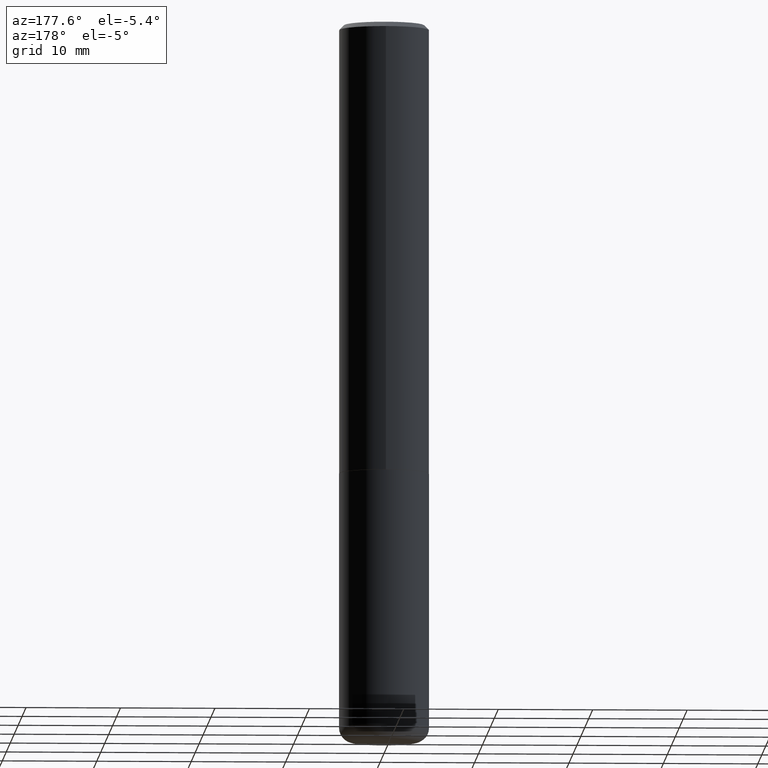
[diagram: clean part render]
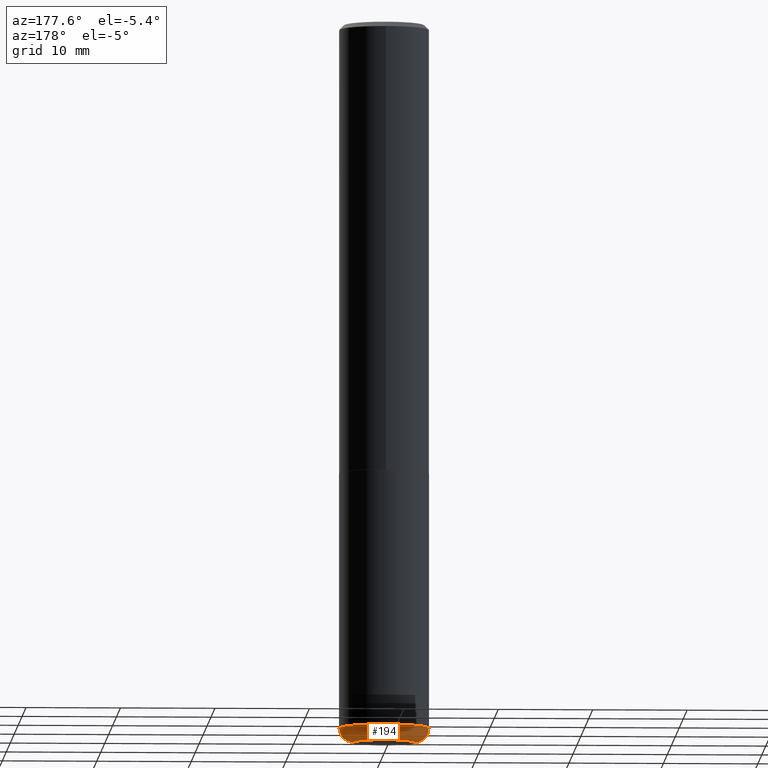
[diagram: same view with one face highlighted and labeled with its STEP entity id]
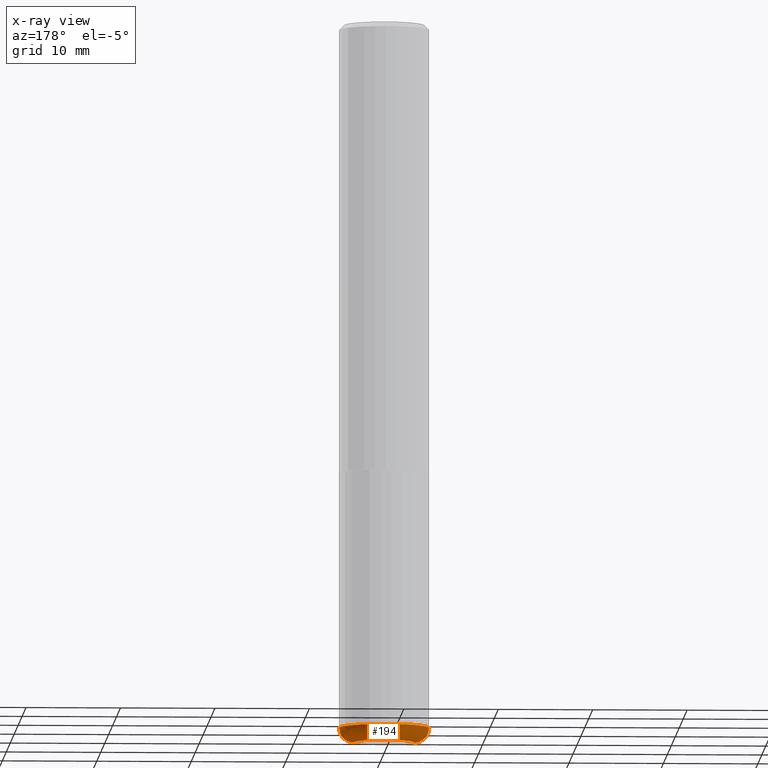
[diagram: x-ray of the same camera — body ghosted, the highlighted face saturated]
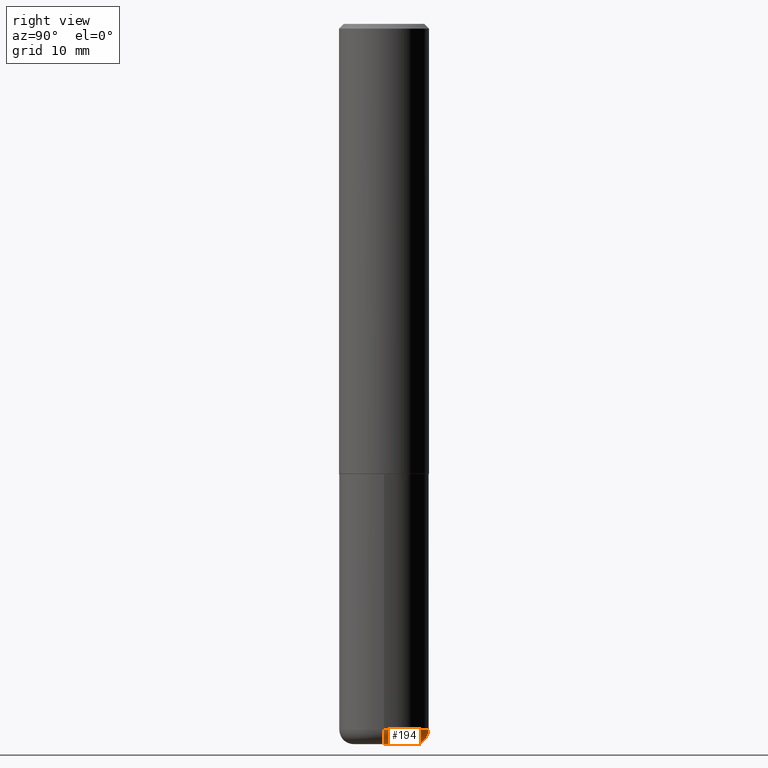
[diagram: same view with one face highlighted and labeled with its STEP entity id]
A machine part, auxiliary view. The second image highlights one B-rep face of the part: STEP entity #194.
The next image is the same camera in x-ray: the body ghosted, the highlighted face saturated — about 0% of this face is hidden behind the body in this view.
A second angle (right view) of the same face is appended — the face is thin or edge-on in the first view.
In plain terms, the highlighted toroidal blend (fillet) surface has major radius 3.2385 mm and minor (blend) radius 1.524 mm.
Its self-contained STEP definition (entity closure, byte-faithful):
#4 = AXIS2_PLACEMENT_3D ( 'NONE', #37, #364, #295 ) ;
#6 = CARTESIAN_POINT ( 'NONE',  ( -0.1275000000000000022, -9.250594767541985380E-15, -3.000000000000000444 ) ) ;
#8 = ORIENTED_EDGE ( 'NONE', *, *, #370, .F. ) ;
#37 = CARTESIAN_POINT ( 'NONE',  ( 7.336406418555409790E-29, -1.047444401652943635E-14, -3.000000000000000444 ) ) ;
#48 = AXIS2_PLACEMENT_3D ( 'NONE', #372, #172, #140 ) ;
#50 = VERTEX_POINT ( 'NONE', #188 ) ;
#64 = DIRECTION ( 'NONE',  ( -2.445468806185136597E-29, 3.491481338843145583E-15, 1.000000000000000000 ) ) ;
#65 = CARTESIAN_POINT ( 'NONE',  ( 7.189678290184301639E-29, -1.026495513619884961E-14, -2.940000000000000391 ) ) ;
#74 = EDGE_LOOP ( 'NONE', ( #368, #399, #311, #8 ) ) ;
#91 = CARTESIAN_POINT ( 'NONE',  ( 7.189678290184301639E-29, -1.026495513619884961E-14, -2.940000000000000391 ) ) ;
#98 = EDGE_CURVE ( 'NONE', #50, #210, #265, .T. ) ;
#101 = DIRECTION ( 'NONE',  ( 1.000000000000000000, -6.982962677686263555E-15, 4.883557194083111219E-29 ) ) ;
#113 = DIRECTION ( 'NONE',  ( 7.105427357601001859E-15, 1.000000000000000000, -3.491481338843145583E-15 ) ) ;
#130 = AXIS2_PLACEMENT_3D ( 'NONE', #91, #227, #320 ) ;
#134 = FACE_OUTER_BOUND ( 'NONE', #74, .T. ) ;
#140 = DIRECTION ( 'NONE',  ( 1.000000000000000000, -6.982962677686270655E-15, 0.000000000000000000 ) ) ;
#172 = DIRECTION ( 'NONE',  ( -6.982962677686266711E-15, -1.000000000000000000, 3.491481338843145583E-15 ) ) ;
#188 = CARTESIAN_POINT ( 'NONE',  ( 0.1875000000000000278, -1.157426063826502304E-14, -2.940000000000000391 ) ) ;
#194 = ADVANCED_FACE ( 'NONE', ( #134 ), #342, .T. ) ;
#195 = AXIS2_PLACEMENT_3D ( 'NONE', #65, #64, #101 ) ;
#210 = VERTEX_POINT ( 'NONE', #268 ) ;
#224 = EDGE_CURVE ( 'NONE', #406, #264, #324, .T. ) ;
#227 = DIRECTION ( 'NONE',  ( -2.445468806185136597E-29, 3.491481338843145583E-15, 1.000000000000000000 ) ) ;
#247 = DIRECTION ( 'NONE',  ( -1.000000000000000000, 7.105427357600993970E-15, 0.000000000000000000 ) ) ;
#264 = VERTEX_POINT ( 'NONE', #6 ) ;
#265 = CIRCLE ( 'NONE', #130, 0.1875000000000000555 ) ;
#268 = CARTESIAN_POINT ( 'NONE',  ( -0.1875000000000000278, -8.932687506648661766E-15, -2.940000000000000391 ) ) ;
#279 = CARTESIAN_POINT ( 'NONE',  ( -0.1275000000000000022, -9.359013148104722256E-15, -2.940000000000000391 ) ) ;
#295 = DIRECTION ( 'NONE',  ( 1.000000000000000000, -6.982962677686260400E-15, 0.000000000000000000 ) ) ;
#297 = CIRCLE ( 'NONE', #348, 0.05999999999999997696 ) ;
#311 = ORIENTED_EDGE ( 'NONE', *, *, #98, .F. ) ;
#320 = DIRECTION ( 'NONE',  ( 1.000000000000000000, -6.982962677686260400E-15, 0.000000000000000000 ) ) ;
#324 = CIRCLE ( 'NONE', #4, 0.1275000000000000022 ) ;
#342 = TOROIDAL_SURFACE ( 'NONE', #195, 0.1275000000000000022, 0.05999999999999997696 ) ;
#348 = AXIS2_PLACEMENT_3D ( 'NONE', #279, #113, #247 ) ;
#360 = CIRCLE ( 'NONE', #48, 0.05999999999999997696 ) ;
#364 = DIRECTION ( 'NONE',  ( -2.445468806185136597E-29, 3.491481338843145583E-15, 1.000000000000000000 ) ) ;
#368 = ORIENTED_EDGE ( 'NONE', *, *, #224, .T. ) ;
#370 = EDGE_CURVE ( 'NONE', #406, #50, #360, .T. ) ;
#372 = CARTESIAN_POINT ( 'NONE',  ( 0.1275000000000000022, -1.115528287760384799E-14, -2.940000000000000391 ) ) ;
#385 = EDGE_CURVE ( 'NONE', #264, #210, #297, .T. ) ;
#398 = CARTESIAN_POINT ( 'NONE',  ( 0.1275000000000000022, -1.136477175793443473E-14, -3.000000000000000444 ) ) ;
#399 = ORIENTED_EDGE ( 'NONE', *, *, #385, .T. ) ;
#406 = VERTEX_POINT ( 'NONE', #398 ) ;